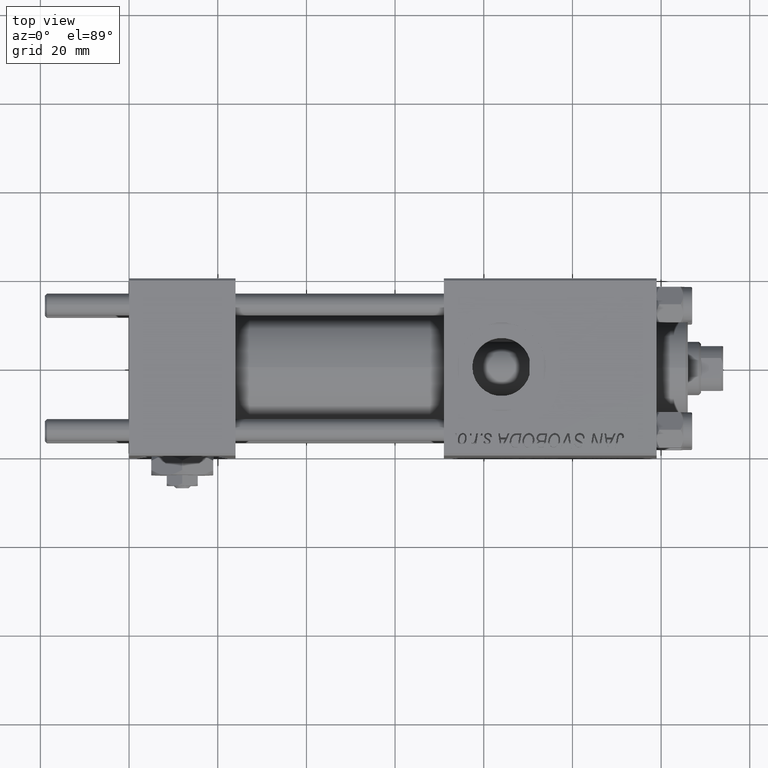
[diagram: clean part render]
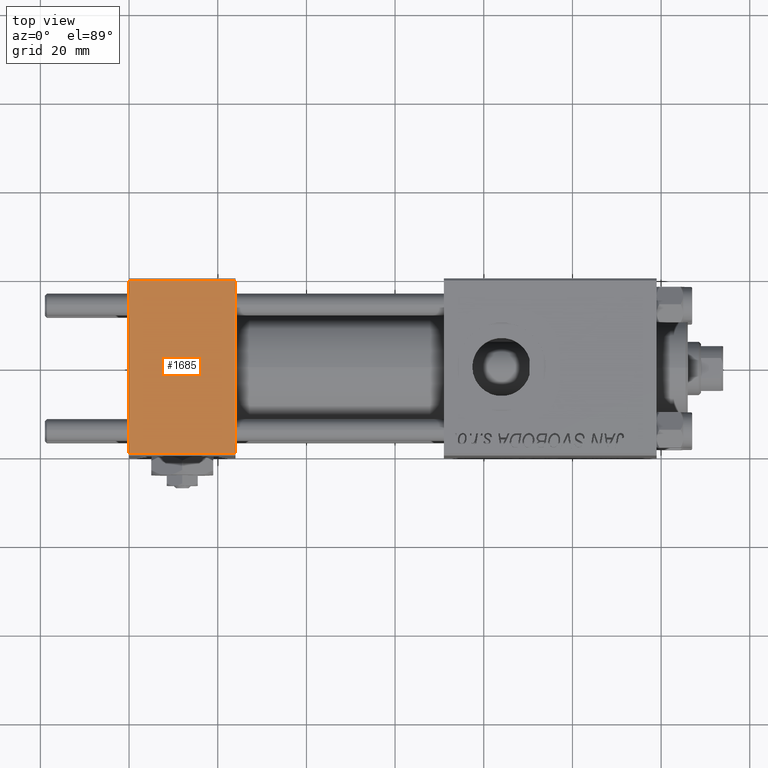
[diagram: same view with one face highlighted and labeled with its STEP entity id]
A machine part, top view. The second image highlights one B-rep face of the part: STEP entity #1685.
In plain terms, the highlighted planar face has unit normal (0, 0, -1).
Its self-contained STEP definition (entity closure, byte-faithful):
#836 = DIRECTION ( 'NONE',  ( 0.000000000000000000, -1.000000000000000000, -2.602085213965210149E-16 ) ) ;
#1445 = VECTOR ( 'NONE', #31601, 1000.000000000000000 ) ;
#1685 = ADVANCED_FACE ( 'NONE', ( #46441 ), #7641, .F. ) ;
#2525 = ORIENTED_EDGE ( 'NONE', *, *, #10954, .T. ) ;
#6268 = CARTESIAN_POINT ( 'NONE',  ( 0.000000000000000000, 19.50000000000000000, 20.00000000000000000 ) ) ;
#7641 = PLANE ( 'NONE',  #48597 ) ;
#8609 = VECTOR ( 'NONE', #14316, 1000.000000000000000 ) ;
#10954 = EDGE_CURVE ( 'NONE', #23036, #16966, #34338, .T. ) ;
#14316 = DIRECTION ( 'NONE',  ( -1.000000000000000000, 0.000000000000000000, 0.000000000000000000 ) ) ;
#15704 = DIRECTION ( 'NONE',  ( 0.000000000000000000, 1.000000000000000000, 2.602085213965210149E-16 ) ) ;
#16966 = VERTEX_POINT ( 'NONE', #38629 ) ;
#17358 = DIRECTION ( 'NONE',  ( 0.000000000000000000, -1.000000000000000000, -2.602085213965210149E-16 ) ) ;
#17537 = ORIENTED_EDGE ( 'NONE', *, *, #33323, .T. ) ;
#17701 = VERTEX_POINT ( 'NONE', #20652 ) ;
#18457 = VECTOR ( 'NONE', #17358, 1000.000000000000000 ) ;
#20012 = VECTOR ( 'NONE', #836, 1000.000000000000000 ) ;
#20652 = CARTESIAN_POINT ( 'NONE',  ( 24.00000000000000000, -19.49999999999999289, 19.99999999999998934 ) ) ;
#23036 = VERTEX_POINT ( 'NONE', #37628 ) ;
#23270 = LINE ( 'NONE', #39157, #1445 ) ;
#23740 = LINE ( 'NONE', #35974, #20012 ) ;
#24030 = EDGE_CURVE ( 'NONE', #34523, #17701, #23270, .T. ) ;
#24761 = ORIENTED_EDGE ( 'NONE', *, *, #32425, .F. ) ;
#24791 = ORIENTED_EDGE ( 'NONE', *, *, #24030, .T. ) ;
#25172 = CARTESIAN_POINT ( 'NONE',  ( 0.000000000000000000, 20.00000000000000000, 20.00000000000000000 ) ) ;
#31601 = DIRECTION ( 'NONE',  ( 1.000000000000000000, 0.000000000000000000, 0.000000000000000000 ) ) ;
#32425 = EDGE_CURVE ( 'NONE', #23036, #17701, #23740, .T. ) ;
#33323 = EDGE_CURVE ( 'NONE', #16966, #34523, #42074, .T. ) ;
#34338 = LINE ( 'NONE', #6268, #8609 ) ;
#34523 = VERTEX_POINT ( 'NONE', #37811 ) ;
#35974 = CARTESIAN_POINT ( 'NONE',  ( 24.00000000000000000, 20.00000000000000000, 20.00000000000000000 ) ) ;
#37628 = CARTESIAN_POINT ( 'NONE',  ( 24.00000000000000000, 19.50000000000000000, 20.00000000000000000 ) ) ;
#37811 = CARTESIAN_POINT ( 'NONE',  ( 0.000000000000000000, -19.49999999999999289, 19.99999999999998934 ) ) ;
#38629 = CARTESIAN_POINT ( 'NONE',  ( 0.000000000000000000, 19.50000000000000000, 20.00000000000000000 ) ) ;
#39132 = CARTESIAN_POINT ( 'NONE',  ( 24.00000000000000000, 20.00000000000000000, 20.00000000000000000 ) ) ;
#39157 = CARTESIAN_POINT ( 'NONE',  ( 24.00000000000000000, -19.49999999999999289, 19.99999999999998934 ) ) ;
#42074 = LINE ( 'NONE', #25172, #18457 ) ;
#43289 = DIRECTION ( 'NONE',  ( 0.000000000000000000, 2.602085213965210149E-16, -1.000000000000000000 ) ) ;
#46441 = FACE_OUTER_BOUND ( 'NONE', #48872, .T. ) ;
#48597 = AXIS2_PLACEMENT_3D ( 'NONE', #39132, #43289, #15704 ) ;
#48872 = EDGE_LOOP ( 'NONE', ( #17537, #24791, #24761, #2525 ) ) ;